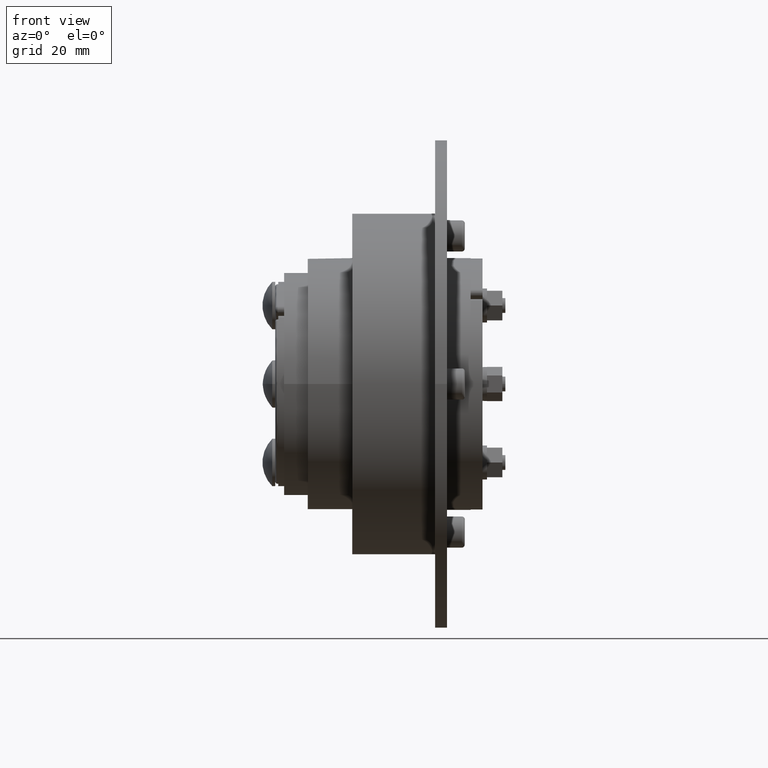
[diagram: clean part render]
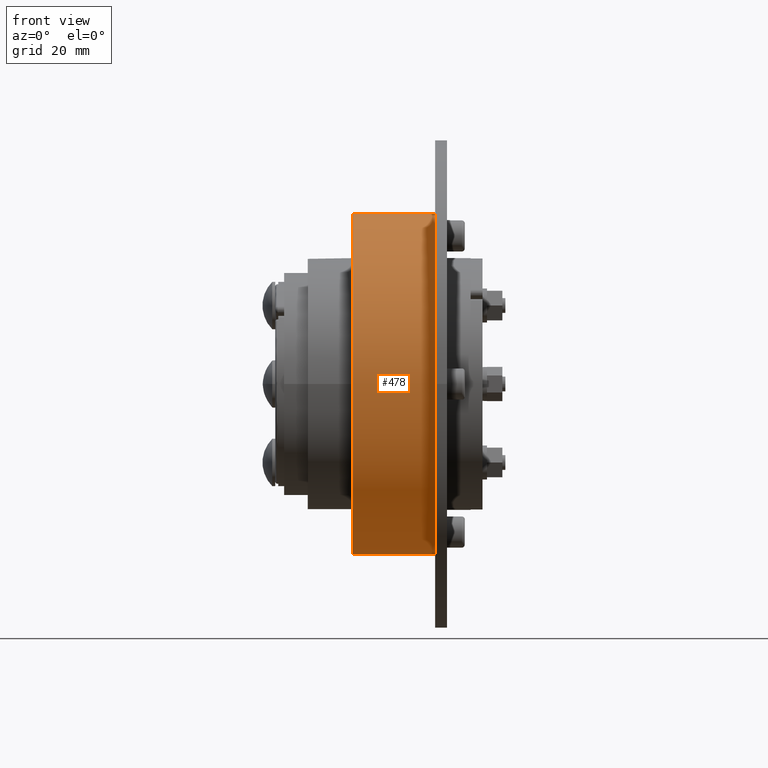
[diagram: same view with one face highlighted and labeled with its STEP entity id]
A machine part, front view. The second image highlights one B-rep face of the part: STEP entity #478.
In plain terms, the highlighted cylindrical surface (partial cylindrical patch) has radius 57.5 mm, axis along (-1, 0, 0).
Its self-contained STEP definition (entity closure, byte-faithful):
#437=CARTESIAN_POINT('',(4.0,0.0,0.0));
#438=DIRECTION('',(1.0,0.0,0.0));
#439=DIRECTION('',(0.0,0.0,1.0));
#440=AXIS2_PLACEMENT_3D('',#437,#438,#439);
#441=CYLINDRICAL_SURFACE('',#440,57.500000000000000);
#442=CARTESIAN_POINT('',(4.0,7.041487E-015,57.500000000000000));
#443=VERTEX_POINT('',#442);
#444=CARTESIAN_POINT('',(32.0,7.041487E-015,57.500000000000000));
#445=VERTEX_POINT('',#444);
#446=CARTESIAN_POINT('',(4.0,7.041487E-015,57.500000000000000));
#447=DIRECTION('',(1.0,0.0,0.0));
#448=VECTOR('',#447,28.0);
#449=LINE('',#446,#448);
#450=EDGE_CURVE('',#443,#445,#449,.T.);
#451=ORIENTED_EDGE('',*,*,#450,.F.);
#452=CARTESIAN_POINT('',(4.0,7.041487E-015,-57.500000000000000));
#453=VERTEX_POINT('',#452);
#454=CARTESIAN_POINT('',(4.0,0.0,0.0));
#455=DIRECTION('',(-1.0,0.0,0.0));
#456=DIRECTION('',(0.0,0.0,1.0));
#457=AXIS2_PLACEMENT_3D('',#454,#455,#456);
#458=CIRCLE('',#457,57.500000000000000);
#459=EDGE_CURVE('',#453,#443,#458,.T.);
#460=ORIENTED_EDGE('',*,*,#459,.F.);
#461=CARTESIAN_POINT('',(32.0,7.041487E-015,-57.500000000000000));
#462=VERTEX_POINT('',#461);
#463=CARTESIAN_POINT('',(32.0,7.041487E-015,-57.500000000000000));
#464=DIRECTION('',(-1.0,0.0,0.0));
#465=VECTOR('',#464,28.0);
#466=LINE('',#463,#465);
#467=EDGE_CURVE('',#462,#453,#466,.T.);
#468=ORIENTED_EDGE('',*,*,#467,.F.);
#469=CARTESIAN_POINT('',(32.0,0.0,0.0));
#470=DIRECTION('',(-1.0,0.0,0.0));
#471=DIRECTION('',(0.0,0.0,1.0));
#472=AXIS2_PLACEMENT_3D('',#469,#470,#471);
#473=CIRCLE('',#472,57.500000000000000);
#474=EDGE_CURVE('',#462,#445,#473,.T.);
#475=ORIENTED_EDGE('',*,*,#474,.T.);
#476=EDGE_LOOP('',(#451,#460,#468,#475));
#477=FACE_OUTER_BOUND('',#476,.T.);
#478=ADVANCED_FACE('',(#477),#441,.T.);